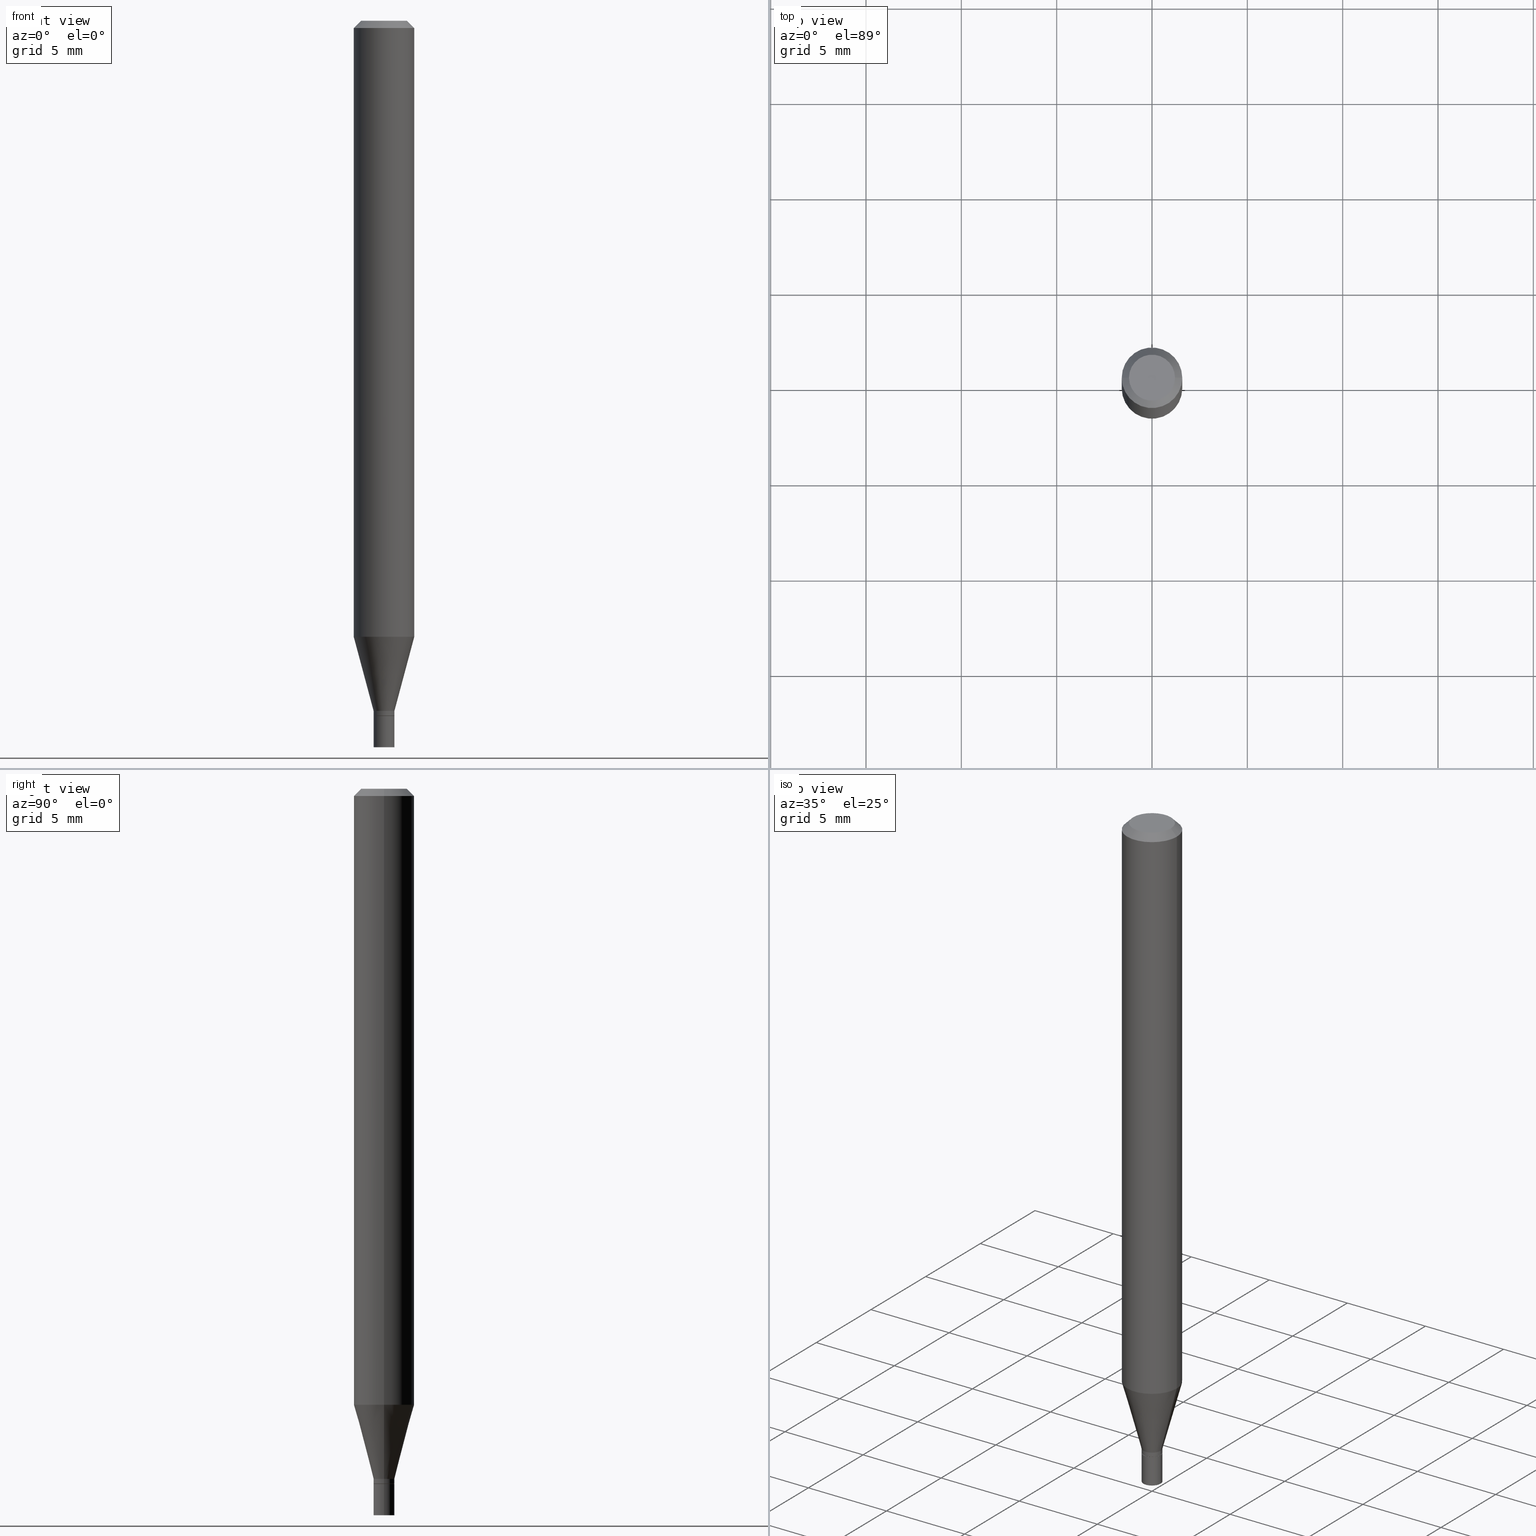
[diagram: canonical four-view strip — front | top / right | iso, engineering-drawing reading convention]
A machine part, canonical four-view strip (front | top / right | iso — engineering-drawing reading convention). The complete STEP part file that produces these views, byte-faithful:
ISO-10303-21;
HEADER;
FILE_DESCRIPTION (( 'STEP AP203' ),
    '1' );
FILE_NAME ('00410.STEP',
    '2024-03-19T21:11:53',
    ( '' ),
    ( '' ),
    'SwSTEP 2.0',
    'SolidWorks 2023',
    '' );
FILE_SCHEMA (( 'CONFIG_CONTROL_DESIGN' ));
ENDSEC;

DATA;
#1 = DIRECTION ( 'NONE',  ( -2.445468806185136597E-29, 3.491481338843145583E-15, 1.000000000000000000 ) ) ;
#2 = LOCAL_TIME ( 17, 11, 53.00000000000000000, #274 ) ;
#3 = LINE ( 'NONE', #398, #66 ) ;
#4 = ORIENTED_EDGE ( 'NONE', *, *, #43, .F. ) ;
#5 = PERSON ( 'UNSPECIFIED', 'UNSPECIFIED', 'UNSPECIFIED', ('UNSPECIFIED'), ('UNSPECIFIED'), ('UNSPECIFIED') ) ;
#6 = AXIS2_PLACEMENT_3D ( 'NONE', #340, #89, #447 ) ;
#7 = DIRECTION ( 'NONE',  ( -0.7071067811865444641, 2.468850131082224717E-15, -0.7071067811865505703 ) ) ;
#8 = ORIENTED_EDGE ( 'NONE', *, *, #37, .T. ) ;
#9 = APPROVAL ( #195, 'UNSPECIFIED' ) ;
#10 = ADVANCED_FACE ( 'NONE', ( #373 ), #221, .T. ) ;
#11 = VECTOR ( 'NONE', #7, 39.37007874015748143 ) ;
#12 = EDGE_LOOP ( 'NONE', ( #386, #50, #92, #123 ) ) ;
#13 = CARTESIAN_POINT ( 'NONE',  ( 0.02099999999999999784, -5.156917937471325857E-15, -1.435000000000000053 ) ) ;
#14 = CONICAL_SURFACE ( 'NONE', #6, 0.06250000000000000000, 0.7853981633974439491 ) ;
#15 = CARTESIAN_POINT ( 'NONE',  ( 3.509247736875671532E-29, -5.010275721239914035E-15, -1.435000000000000053 ) ) ;
#16 = EDGE_LOOP ( 'NONE', ( #435, #8 ) ) ;
#17 = FACE_OUTER_BOUND ( 'NONE', #306, .T. ) ;
#18 = CALENDAR_DATE ( 2024, 19, 3 ) ;
#19 = ORIENTED_EDGE ( 'NONE', *, *, #371, .F. ) ;
#20 = CARTESIAN_POINT ( 'NONE',  ( 3.316907271900976096E-16, 0.04749999999999999362, -9.994755555137580731E-17 ) ) ;
#21 = DIRECTION ( 'NONE',  ( -2.445468806185136597E-29, 3.491481338843145583E-15, 1.000000000000000000 ) ) ;
#22 = PERSON_AND_ORGANIZATION_ROLE ( 'creator' ) ;
#23 = FACE_OUTER_BOUND ( 'NONE', #75, .T. ) ;
#24 = ORIENTED_EDGE ( 'NONE', *, *, #47, .T. ) ;
#25 = VERTEX_POINT ( 'NONE', #409 ) ;
#26 = ADVANCED_FACE ( 'NONE', ( #91 ), #201, .F. ) ;
#27 = CARTESIAN_POINT ( 'NONE',  ( 3.509247736875671532E-29, -5.010275721239914035E-15, -1.435000000000000053 ) ) ;
#28 = CARTESIAN_POINT ( 'NONE',  ( 0.02149999999999991848, -1.501336975702541880E-16, 1.048378006796122174E-30 ) ) ;
#29 = FACE_OUTER_BOUND ( 'NONE', #54, .T. ) ;
#30 = LENGTH_MEASURE_WITH_UNIT ( LENGTH_MEASURE( 0.02539999999999999897 ), #245 );
#31 = DIRECTION ( 'NONE',  ( -2.445468806185136597E-29, 3.491481338843145583E-15, 1.000000000000000000 ) ) ;
#32 = CC_DESIGN_PERSON_AND_ORGANIZATION_ASSIGNMENT ( #441, #114, ( #429 ) ) ;
#33 = AXIS2_PLACEMENT_3D ( 'NONE', #188, #94, #235 ) ;
#34 = DIRECTION ( 'NONE',  ( -2.445468806185136877E-29, 3.491481338843145188E-15, 1.000000000000000000 ) ) ;
#35 = CARTESIAN_POINT ( 'NONE',  ( 0.000000000000000000, 0.000000000000000000, 0.000000000000000000 ) ) ;
#36 = CIRCLE ( 'NONE', #330, 0.02150000000000000175 ) ;
#37 = EDGE_CURVE ( 'NONE', #86, #25, #36, .T. ) ;
#38 = CARTESIAN_POINT ( 'NONE',  ( -0.06250000000000000000, 4.440892098500626162E-16, -3.074334431409316114E-30 ) ) ;
#39 = EDGE_CURVE ( 'NONE', #146, #285, #392, .T. ) ;
#40 = CIRCLE ( 'NONE', #33, 0.06250000000000000000 ) ;
#41 = ORIENTED_EDGE ( 'NONE', *, *, #284, .F. ) ;
#42 = AXIS2_PLACEMENT_3D ( 'NONE', #294, #196, #372 ) ;
#43 = EDGE_CURVE ( 'NONE', #198, #332, #411, .T. ) ;
#44 = DIRECTION ( 'NONE',  ( 1.000000000000000000, -6.982962677686287221E-15, 0.000000000000000000 ) ) ;
#45 = CONICAL_SURFACE ( 'NONE', #391, 0.02099999999999999784, 0.7853981633974739252 ) ;
#46 = DIRECTION ( 'NONE',  ( 1.000000000000000000, -6.982962677686266711E-15, 0.000000000000000000 ) ) ;
#47 = EDGE_CURVE ( 'NONE', #332, #198, #351, .T. ) ;
#48 = EDGE_CURVE ( 'NONE', #100, #113, #140, .T. ) ;
#49 = VERTEX_POINT ( 'NONE', #288 ) ;
#50 = ORIENTED_EDGE ( 'NONE', *, *, #48, .T. ) ;
#51 = AXIS2_PLACEMENT_3D ( 'NONE', #305, #85, #229 ) ;
#52 = LINE ( 'NONE', #13, #77 ) ;
#53 = CARTESIAN_POINT ( 'NONE',  ( 3.576687321579069994E-29, -5.368277968210015545E-15, -1.500000000000000222 ) ) ;
#54 = EDGE_LOOP ( 'NONE', ( #148, #393, #341, #151 ) ) ;
#55 = DIRECTION ( 'NONE',  ( 1.000000000000000000, -6.982962677686266711E-15, 4.876176775795935793E-29 ) ) ;
#56 = CLOSED_SHELL ( 'NONE', ( #111, #339, #197, #26 ) ) ;
#57 = ORIENTED_EDGE ( 'NONE', *, *, #350, .F. ) ;
#58 = PERSON_AND_ORGANIZATION ( #5, #186 ) ;
#59 = DIRECTION ( 'NONE',  ( -2.445468806185136597E-29, 3.491481338843145583E-15, 1.000000000000000000 ) ) ;
#60 = CARTESIAN_POINT ( 'NONE',  ( 3.668203209277704895E-29, -5.237222008264718177E-15, -1.500000000000000222 ) ) ;
#61 = ORIENTED_EDGE ( 'NONE', *, *, #399, .T. ) ;
#62 = CARTESIAN_POINT ( 'NONE',  ( 3.484793048813820547E-29, -4.975360907851483175E-15, -1.425000000000000266 ) ) ;
#63 = AXIS2_PLACEMENT_3D ( 'NONE', #20, #315, #172 ) ;
#64 = LINE ( 'NONE', #137, #143 ) ;
#65 = LINE ( 'NONE', #28, #434 ) ;
#66 = VECTOR ( 'NONE', #442, 39.37007874015748143 ) ;
#67 = APPROVAL_DATE_TIME ( #343, #259 ) ;
#68 = DIRECTION ( 'NONE',  ( 1.000000000000000000, -6.982962677686287221E-15, 0.000000000000000000 ) ) ;
#69 = EDGE_CURVE ( 'NONE', #251, #324, #3, .T. ) ;
#70 = DIRECTION ( 'NONE',  ( -2.445468806185136877E-29, 3.491481338843145188E-15, 1.000000000000000000 ) ) ;
#71 = ORIENTED_EDGE ( 'NONE', *, *, #329, .F. ) ;
#72 = EDGE_CURVE ( 'NONE', #25, #86, #287, .T. ) ;
#73 = AXIS2_PLACEMENT_3D ( 'NONE', #27, #458, #242 ) ;
#74 = ORIENTED_EDGE ( 'NONE', *, *, #174, .F. ) ;
#75 = EDGE_LOOP ( 'NONE', ( #389, #431, #432, #254 ) ) ;
#76 = CC_DESIGN_PERSON_AND_ORGANIZATION_ASSIGNMENT ( #166, #377, ( #252 ) ) ;
#77 = VECTOR ( 'NONE', #155, 39.37007874015748143 ) ;
#78 = ORIENTED_EDGE ( 'NONE', *, *, #210, .T. ) ;
#79 =( GEOMETRIC_REPRESENTATION_CONTEXT ( 3 ) GLOBAL_UNCERTAINTY_ASSIGNED_CONTEXT ( ( #440 ) ) GLOBAL_UNIT_ASSIGNED_CONTEXT ( ( #237, #134, #421 ) ) REPRESENTATION_CONTEXT ( 'NONE', 'WORKASPACE' ) );
#80 = DIRECTION ( 'NONE',  ( 1.000000000000000000, -6.982962677686265133E-15, 0.000000000000000000 ) ) ;
#81 = PERSON_AND_ORGANIZATION ( #5, #186 ) ;
#82 = AXIS2_PLACEMENT_3D ( 'NONE', #236, #383, #311 ) ;
#83 = DIRECTION ( 'NONE',  ( 1.000000000000000000, -6.982962677686287221E-15, 0.000000000000000000 ) ) ;
#84 = EDGE_LOOP ( 'NONE', ( #74, #225, #337, #334 ) ) ;
#85 = DIRECTION ( 'NONE',  ( -2.445468806185136597E-29, 3.491481338843145583E-15, 1.000000000000000000 ) ) ;
#86 = VERTEX_POINT ( 'NONE', #224 ) ;
#87 = CARTESIAN_POINT ( 'NONE',  ( 3.668203209277705088E-31, -5.237222008264718399E-17, -0.01499999999999999944 ) ) ;
#88 = APPROVAL_ROLE ( '' ) ;
#89 = DIRECTION ( 'NONE',  ( 2.445468806185136597E-29, -3.491481338843145583E-15, -1.000000000000000000 ) ) ;
#90 = AXIS2_PLACEMENT_3D ( 'NONE', #404, #59, #120 ) ;
#91 = FACE_OUTER_BOUND ( 'NONE', #16, .T. ) ;
#92 = ORIENTED_EDGE ( 'NONE', *, *, #437, .T. ) ;
#93 = COORDINATED_UNIVERSAL_TIME_OFFSET ( 5, 0, .BEHIND. ) ;
#94 = DIRECTION ( 'NONE',  ( -2.445468806185136597E-29, 3.491481338843145583E-15, 1.000000000000000000 ) ) ;
#95 = ADVANCED_FACE ( 'NONE', ( #369 ), #14, .T. ) ;
#96 = DIRECTION ( 'NONE',  ( 0.2588190451025213501, 1.565188264969621968E-15, 0.9659258262890682012 ) ) ;
#97 = VECTOR ( 'NONE', #291, 39.37007874015747433 ) ;
#98 = CC_DESIGN_DATE_AND_TIME_ASSIGNMENT ( #455, #157, ( #252 ) ) ;
#99 = CARTESIAN_POINT ( 'NONE',  ( -0.02149999999999992195, -4.855763292382072039E-15, -1.434500000000000330 ) ) ;
#100 = VERTEX_POINT ( 'NONE', #187 ) ;
#101 = ORIENTED_EDGE ( 'NONE', *, *, #329, .T. ) ;
#102 = AXIS2_PLACEMENT_3D ( 'NONE', #336, #309, #412 ) ;
#103 = LINE ( 'NONE', #426, #395 ) ;
#104 = ORIENTED_EDGE ( 'NONE', *, *, #72, .F. ) ;
#105 = CLOSED_SHELL ( 'NONE', ( #299, #410, #10, #363, #179, #194, #390, #95, #265, #425, #106, #322 ) ) ;
#106 = ADVANCED_FACE ( 'NONE', ( #116 ), #183, .T. ) ;
#107 = ORIENTED_EDGE ( 'NONE', *, *, #138, .T. ) ;
#108 = MANIFOLD_SOLID_BREP ( 'Body-Move/Copy2[1]', #56 ) ;
#109 = AXIS2_PLACEMENT_3D ( 'NONE', #35, #318, #264 ) ;
#110 = AXIS2_PLACEMENT_3D ( 'NONE', #344, #335, #83 ) ;
#111 = ADVANCED_FACE ( 'NONE', ( #228 ), #159, .T. ) ;
#112 = PLANE ( 'NONE',  #316 ) ;
#113 = VERTEX_POINT ( 'NONE', #268 ) ;
#114 = PERSON_AND_ORGANIZATION_ROLE ( 'design_supplier' ) ;
#115 = DIRECTION ( 'NONE',  ( 1.000000000000000000, 0.000000000000000000, 0.000000000000000000 ) ) ;
#116 = FACE_OUTER_BOUND ( 'NONE', #300, .T. ) ;
#117 = EDGE_CURVE ( 'NONE', #285, #146, #176, .T. ) ;
#118 = APPROVAL_DATE_TIME ( #125, #9 ) ;
#119 = CIRCLE ( 'NONE', #238, 0.06250000000000000000 ) ;
#120 = DIRECTION ( 'NONE',  ( 1.000000000000000000, -6.982962677686265133E-15, 0.000000000000000000 ) ) ;
#121 = DIRECTION ( 'NONE',  ( -1.000000000000000000, 6.982962677686266711E-15, 0.000000000000000000 ) ) ;
#122 = FACE_OUTER_BOUND ( 'NONE', #84, .T. ) ;
#123 = ORIENTED_EDGE ( 'NONE', *, *, #211, .F. ) ;
#124 = APPLICATION_CONTEXT ( 'configuration controlled 3d designs of mechanical parts and assemblies' ) ;
#125 = DATE_AND_TIME ( #453, #247 ) ;
#126 = EDGE_LOOP ( 'NONE', ( #272, #101, #459, #367 ) ) ;
#127 = PERSON_AND_ORGANIZATION ( #5, #186 ) ;
#128 = EDGE_CURVE ( 'NONE', #198, #375, #52, .T. ) ;
#129 = DIRECTION ( 'NONE',  ( 2.445468806185136597E-29, -3.491481338843145583E-15, -1.000000000000000000 ) ) ;
#130 = DIRECTION ( 'NONE',  ( -2.445468806185136877E-29, 3.491481338843145188E-15, 1.000000000000000000 ) ) ;
#131 = DIRECTION ( 'NONE',  ( 1.000000000000000000, -6.982962677686246989E-15, 0.000000000000000000 ) ) ;
#132 = AXIS2_PLACEMENT_3D ( 'NONE', #354, #31, #170 ) ;
#133 = APPLICATION_CONTEXT ( 'configuration controlled 3d designs of mechanical parts and assemblies' ) ;
#134 =( NAMED_UNIT ( * ) PLANE_ANGLE_UNIT ( ) SI_UNIT ( $, .RADIAN. ) );
#135 = LINE ( 'NONE', #38, #226 ) ;
#136 = AXIS2_PLACEMENT_3D ( 'NONE', #280, #213, #141 ) ;
#137 = CARTESIAN_POINT ( 'NONE',  ( 0.06250000000000000000, -4.364351673553916694E-16, 3.047610484872459871E-30 ) ) ;
#138 = EDGE_CURVE ( 'NONE', #113, #100, #173, .T. ) ;
#139 = AXIS2_PLACEMENT_3D ( 'NONE', #62, #165, #131 ) ;
#140 = CIRCLE ( 'NONE', #422, 0.02149999999999991501 ) ;
#141 = DIRECTION ( 'NONE',  ( 1.000000000000000000, -6.982962677686246989E-15, 0.000000000000000000 ) ) ;
#142 = CARTESIAN_POINT ( 'NONE',  ( 3.509247736875671532E-29, -5.010275721239914035E-15, -1.435000000000000053 ) ) ;
#143 = VECTOR ( 'NONE', #457, 39.37007874015748143 ) ;
#144 = EDGE_LOOP ( 'NONE', ( #107, #61, #57, #276 ) ) ;
#145 = EDGE_LOOP ( 'NONE', ( #451, #396, #346, #321 ) ) ;
#146 = VERTEX_POINT ( 'NONE', #424 ) ;
#147 = APPLICATION_PROTOCOL_DEFINITION ( 'international standard', 'config_control_design', 1994, #124 ) ;
#148 = ORIENTED_EDGE ( 'NONE', *, *, #394, .F. ) ;
#149 = AXIS2_PLACEMENT_3D ( 'NONE', #169, #461, #407 ) ;
#150 = LINE ( 'NONE', #444, #97 ) ;
#151 = ORIENTED_EDGE ( 'NONE', *, *, #37, .F. ) ;
#152 = APPROVAL_ROLE ( '' ) ;
#153 = DIRECTION ( 'NONE',  ( 0.000000000000000000, 0.000000000000000000, 1.000000000000000000 ) ) ;
#154 = CC_DESIGN_PERSON_AND_ORGANIZATION_ASSIGNMENT ( #263, #22, ( #429 ) ) ;
#155 = DIRECTION ( 'NONE',  ( 0.7071067811865656694, -2.468850131082446387E-15, 0.7071067811865294761 ) ) ;
#156 = ORIENTED_EDGE ( 'NONE', *, *, #401, .T. ) ;
#157 = DATE_TIME_ROLE ( 'creation_date' ) ;
#158 = CARTESIAN_POINT ( 'NONE',  ( 0.000000000000000000, 0.000000000000000000, 0.000000000000000000 ) ) ;
#159 = CYLINDRICAL_SURFACE ( 'NONE', #42, 0.02150000000000000175 ) ;
#160 = EDGE_LOOP ( 'NONE', ( #253, #402 ) ) ;
#161 = LINE ( 'NONE', #222, #418 ) ;
#162 = APPROVAL_STATUS ( 'not_yet_approved' ) ;
#163 = VECTOR ( 'NONE', #34, 39.37007874015748143 ) ;
#164 = DIRECTION ( 'NONE',  ( -2.445468806185136597E-29, 3.491481338843145583E-15, 1.000000000000000000 ) ) ;
#165 = DIRECTION ( 'NONE',  ( -2.445468806185136597E-29, 3.491481338843145583E-15, 1.000000000000000000 ) ) ;
#166 = PERSON_AND_ORGANIZATION ( #5, #186 ) ;
#167 = PRODUCT ( '00410', '00410', '', ( #216 ) ) ;
#168 = CARTESIAN_POINT ( 'NONE',  ( -0.02099999999999999784, -4.858412519556183240E-15, -1.435000000000000053 ) ) ;
#169 = CARTESIAN_POINT ( 'NONE',  ( 3.508025002472578731E-29, -5.008529980570492532E-15, -1.434500000000000330 ) ) ;
#170 = DIRECTION ( 'NONE',  ( 1.000000000000000000, -6.982962677686266711E-15, 0.000000000000000000 ) ) ;
#171 = CIRCLE ( 'NONE', #301, 0.04749999999999999362 ) ;
#172 = DIRECTION ( 'NONE',  ( -1.000000000000000000, 6.982962677686265922E-15, -4.876176775795935793E-29 ) ) ;
#173 = CIRCLE ( 'NONE', #136, 0.02149999999999991501 ) ;
#174 = EDGE_CURVE ( 'NONE', #250, #100, #103, .T. ) ;
#175 = EDGE_CURVE ( 'NONE', #292, #251, #190, .T. ) ;
#176 = CIRCLE ( 'NONE', #277, 0.02150000000000000175 ) ;
#177 = DIRECTION ( 'NONE',  ( 1.000000000000000000, -6.982962677686267499E-15, 4.884662768193073002E-29 ) ) ;
#178 = VERTEX_POINT ( 'NONE', #249 ) ;
#179 = ADVANCED_FACE ( 'NONE', ( #319 ), #397, .T. ) ;
#180 = CARTESIAN_POINT ( 'NONE',  ( 3.484793048813820547E-29, -4.975360907851483175E-15, -1.425000000000000266 ) ) ;
#181 = LOCAL_TIME ( 17, 11, 53.00000000000000000, #298 ) ;
#182 = ORIENTED_EDGE ( 'NONE', *, *, #69, .T. ) ;
#183 = CONICAL_SURFACE ( 'NONE', #110, 0.02099999999999999784, 0.7853981633974739252 ) ;
#184 = DIRECTION ( 'NONE',  ( -2.445468806185136877E-29, 3.491481338843145188E-15, 1.000000000000000000 ) ) ;
#185 = ORIENTED_EDGE ( 'NONE', *, *, #175, .F. ) ;
#186 = ORGANIZATION ( 'UNSPECIFIED', 'UNSPECIFIED', '' ) ;
#187 = CARTESIAN_POINT ( 'NONE',  ( -0.02149999999999991501, -4.409810050952296864E-15, -1.425000000000000266 ) ) ;
#188 = CARTESIAN_POINT ( 'NONE',  ( 3.110601881660502602E-29, -4.441115092091593662E-15, -1.271985916889676327 ) ) ;
#189 = CARTESIAN_POINT ( 'NONE',  ( -0.06250000000000000000, 3.840629472727444916E-16, -0.01499999999999999944 ) ) ;
#190 = CIRCLE ( 'NONE', #463, 0.04749999999999999362 ) ;
#191 = DIRECTION ( 'NONE',  ( -2.445468806185136597E-29, 3.491481338843145583E-15, 1.000000000000000000 ) ) ;
#192 = CARTESIAN_POINT ( 'NONE',  ( 3.668203209277705088E-31, -5.237222008264718399E-17, -0.01499999999999999944 ) ) ;
#193 = ORIENTED_EDGE ( 'NONE', *, *, #227, .F. ) ;
#194 = ADVANCED_FACE ( 'NONE', ( #233 ), #257, .T. ) ;
#195 = APPROVAL_STATUS ( 'not_yet_approved' ) ;
#196 = DIRECTION ( 'NONE',  ( -2.445468806185136597E-29, 3.491481338843145583E-15, 1.000000000000000000 ) ) ;
#197 = ADVANCED_FACE ( 'NONE', ( #29 ), #273, .T. ) ;
#198 = VERTEX_POINT ( 'NONE', #206 ) ;
#199 = CARTESIAN_POINT ( 'NONE',  ( 3.484793048813820547E-29, -4.975360907851483175E-15, -1.425000000000000266 ) ) ;
#200 = CIRCLE ( 'NONE', #149, 0.02149999999999992195 ) ;
#201 = PLANE ( 'NONE',  #358 ) ;
#202 = FACE_OUTER_BOUND ( 'NONE', #427, .T. ) ;
#203 = DIRECTION ( 'NONE',  ( -2.445468806185136597E-29, 3.491481338843145583E-15, 1.000000000000000000 ) ) ;
#204 = PERSON_AND_ORGANIZATION_ROLE ( 'classification_officer' ) ;
#205 = CARTESIAN_POINT ( 'NONE',  ( 0.02149999999999991501, -5.125494605421737215E-15, -1.425000000000000266 ) ) ;
#206 = CARTESIAN_POINT ( 'NONE',  ( 0.02099999999999999784, -5.156917937471325857E-15, -1.435000000000000053 ) ) ;
#207 = PRODUCT_RELATED_PRODUCT_CATEGORY ( 'detail', '', ( #167 ) ) ;
#208 = CC_DESIGN_APPROVAL ( #313, ( #429 ) ) ;
#209 = DIRECTION ( 'NONE',  ( -2.445468806185136597E-29, 3.491481338843145583E-15, 1.000000000000000000 ) ) ;
#210 = EDGE_CURVE ( 'NONE', #49, #324, #64, .T. ) ;
#211 = EDGE_CURVE ( 'NONE', #286, #49, #119, .T. ) ;
#212 = CIRCLE ( 'NONE', #460, 0.06250000000000000000 ) ;
#213 = DIRECTION ( 'NONE',  ( -2.445468806185136597E-29, 3.491481338843145583E-15, 1.000000000000000000 ) ) ;
#214 = AXIS2_PLACEMENT_3D ( 'NONE', #416, #1, #44 ) ;
#215 = EDGE_LOOP ( 'NONE', ( #41, #182, #156, #19 ) ) ;
#216 = MECHANICAL_CONTEXT ( 'NONE', #124, 'mechanical' ) ;
#217 = CC_DESIGN_PERSON_AND_ORGANIZATION_ASSIGNMENT ( #127, #204, ( #448 ) ) ;
#218 = APPROVAL_PERSON_ORGANIZATION ( #81, #9, #88 ) ;
#219 = EDGE_LOOP ( 'NONE', ( #443, #185, #449, #428 ) ) ;
#220 = AXIS2_PLACEMENT_3D ( 'NONE', #438, #366, #55 ) ;
#221 = CONICAL_SURFACE ( 'NONE', #466, 0.06250000000000000000, 0.7853981633974439491 ) ;
#222 = CARTESIAN_POINT ( 'NONE',  ( -0.02150000000000000175, 1.527666881884215524E-16, -1.057571044404804700E-30 ) ) ;
#223 = DESIGN_CONTEXT ( 'detailed design', #133, 'design' ) ;
#224 = CARTESIAN_POINT ( 'NONE',  ( -0.02150000000000000175, -4.970982176563895219E-15, -1.435000000000000053 ) ) ;
#225 = ORIENTED_EDGE ( 'NONE', *, *, #227, .T. ) ;
#226 = VECTOR ( 'NONE', #278, 39.37007874015748143 ) ;
#227 = EDGE_CURVE ( 'NONE', #250, #375, #200, .T. ) ;
#228 = FACE_OUTER_BOUND ( 'NONE', #310, .T. ) ;
#229 = DIRECTION ( 'NONE',  ( 1.000000000000000000, -6.982962677686267499E-15, 4.876176775795935793E-29 ) ) ;
#230 = PERSON_AND_ORGANIZATION ( #5, #186 ) ;
#231 = CC_DESIGN_PERSON_AND_ORGANIZATION_ASSIGNMENT ( #58, #408, ( #167 ) ) ;
#232 = DIRECTION ( 'NONE',  ( 2.438088387897960049E-29, -3.491481338843145188E-15, -1.000000000000000000 ) ) ;
#233 = FACE_OUTER_BOUND ( 'NONE', #12, .T. ) ;
#234 = SECURITY_CLASSIFICATION_LEVEL ( 'unclassified' ) ;
#235 = DIRECTION ( 'NONE',  ( 1.000000000000000000, -6.982962677686262766E-15, 0.000000000000000000 ) ) ;
#236 = CARTESIAN_POINT ( 'NONE',  ( 0.000000000000000000, 0.000000000000000000, 0.000000000000000000 ) ) ;
#237 =( CONVERSION_BASED_UNIT ( 'INCH', #30 ) LENGTH_UNIT ( ) NAMED_UNIT ( #446 ) );
#238 = AXIS2_PLACEMENT_3D ( 'NONE', #275, #203, #452 ) ;
#239 = DIRECTION ( 'NONE',  ( -0.7071067811865656694, 7.493145998870420424E-15, 0.7071067811865294761 ) ) ;
#240 = CARTESIAN_POINT ( 'NONE',  ( 0.04749999999999999362, -4.035134999187576158E-16, 1.317956160873497667E-16 ) ) ;
#241 = SHAPE_DEFINITION_REPRESENTATION ( #279, #360 ) ;
#242 = DIRECTION ( 'NONE',  ( 1.000000000000000000, -6.982962677686265922E-15, 4.876176775795935793E-29 ) ) ;
#243 = CARTESIAN_POINT ( 'NONE',  ( -0.04749999999999999362, 3.578768372314212971E-16, 1.317956160873447624E-16 ) ) ;
#244 = EDGE_CURVE ( 'NONE', #285, #25, #419, .T. ) ;
#245 =( LENGTH_UNIT ( ) NAMED_UNIT ( * ) SI_UNIT ( $, .METRE. ) );
#246 = CYLINDRICAL_SURFACE ( 'NONE', #109, 0.02149999999999991848 ) ;
#247 = LOCAL_TIME ( 17, 11, 53.00000000000000000, #312 ) ;
#248 = DIRECTION ( 'NONE',  ( -2.445468806185136597E-29, 3.491481338843145583E-15, 1.000000000000000000 ) ) ;
#249 = CARTESIAN_POINT ( 'NONE',  ( -0.06250000000000000000, -1.802654446237057557E-15, -0.01499999999999999944 ) ) ;
#250 = VERTEX_POINT ( 'NONE', #99 ) ;
#251 = VERTEX_POINT ( 'NONE', #240 ) ;
#252 = PRODUCT_DEFINITION ( 'UNKNOWN', '', #429, #223 ) ;
#253 = ORIENTED_EDGE ( 'NONE', *, *, #175, .T. ) ;
#254 = ORIENTED_EDGE ( 'NONE', *, *, #210, .F. ) ;
#255 = CARTESIAN_POINT ( 'NONE',  ( 0.02149999999999992195, -5.158663678140747361E-15, -1.434500000000000330 ) ) ;
#256 = MANIFOLD_SOLID_BREP ( 'Body-Move/Copy2[2]', #105 ) ;
#257 = CONICAL_SURFACE ( 'NONE', #290, 0.02149999999999991501, 0.2617993877991500740 ) ;
#258 = EDGE_LOOP ( 'NONE', ( #454, #262 ) ) ;
#259 = APPROVAL ( #162, 'UNSPECIFIED' ) ;
#260 = AXIS2_PLACEMENT_3D ( 'NONE', #60, #164, #304 ) ;
#261 = DIRECTION ( 'NONE',  ( -2.438088387897960049E-29, 3.491481338843145188E-15, 1.000000000000000000 ) ) ;
#262 = ORIENTED_EDGE ( 'NONE', *, *, #39, .F. ) ;
#263 = PERSON_AND_ORGANIZATION ( #5, #186 ) ;
#264 = DIRECTION ( 'NONE',  ( 1.000000000000000000, -6.982962677686267499E-15, 4.876176775795935793E-29 ) ) ;
#265 = ADVANCED_FACE ( 'NONE', ( #342 ), #387, .F. ) ;
#266 = ORIENTED_EDGE ( 'NONE', *, *, #295, .F. ) ;
#267 = APPLICATION_PROTOCOL_DEFINITION ( 'international standard', 'config_control_design', 1994, #133 ) ;
#268 = CARTESIAN_POINT ( 'NONE',  ( 0.02149999999999991501, -5.125494605421737215E-15, -1.425000000000000266 ) ) ;
#269 = CARTESIAN_POINT ( 'NONE',  ( 0.06250000000000000000, -4.888073874380388472E-16, -0.01499999999999999944 ) ) ;
#270 = ORIENTED_EDGE ( 'NONE', *, *, #117, .T. ) ;
#271 = FACE_OUTER_BOUND ( 'NONE', #258, .T. ) ;
#272 = ORIENTED_EDGE ( 'NONE', *, *, #43, .T. ) ;
#273 = CYLINDRICAL_SURFACE ( 'NONE', #82, 0.02150000000000000175 ) ;
#274 = COORDINATED_UNIVERSAL_TIME_OFFSET ( 5, 0, .BEHIND. ) ;
#275 = CARTESIAN_POINT ( 'NONE',  ( 3.110601881660502602E-29, -4.441115092091593662E-15, -1.271985916889676327 ) ) ;
#276 = ORIENTED_EDGE ( 'NONE', *, *, #437, .F. ) ;
#277 = AXIS2_PLACEMENT_3D ( 'NONE', #400, #191, #80 ) ;
#278 = DIRECTION ( 'NONE',  ( -2.445468806185136877E-29, 3.491481338843145188E-15, 1.000000000000000000 ) ) ;
#279 = PRODUCT_DEFINITION_SHAPE ( 'NONE', 'NONE',  #252 ) ;
#280 = CARTESIAN_POINT ( 'NONE',  ( 3.484793048813820547E-29, -4.975360907851483175E-15, -1.425000000000000266 ) ) ;
#281 = LOCAL_TIME ( 17, 11, 53.00000000000000000, #348 ) ;
#282 = DIRECTION ( 'NONE',  ( -2.445468806185136597E-29, 3.491481338843145583E-15, 1.000000000000000000 ) ) ;
#283 = AXIS2_PLACEMENT_3D ( 'NONE', #158, #153, #115 ) ;
#284 = EDGE_CURVE ( 'NONE', #251, #292, #171, .T. ) ;
#285 = VERTEX_POINT ( 'NONE', #462 ) ;
#286 = VERTEX_POINT ( 'NONE', #357 ) ;
#287 = CIRCLE ( 'NONE', #90, 0.02150000000000000175 ) ;
#288 = CARTESIAN_POINT ( 'NONE',  ( 0.06250000000000001388, -4.877550259446984543E-15, -1.271985916889676327 ) ) ;
#289 = CYLINDRICAL_SURFACE ( 'NONE', #220, 0.06250000000000000000 ) ;
#290 = AXIS2_PLACEMENT_3D ( 'NONE', #199, #347, #413 ) ;
#291 = DIRECTION ( 'NONE',  ( -0.2588190451025213501, 5.211531920934551042E-15, 0.9659258262890682012 ) ) ;
#292 = VERTEX_POINT ( 'NONE', #243 ) ;
#293 = PERSON_AND_ORGANIZATION ( #5, #186 ) ;
#294 = CARTESIAN_POINT ( 'NONE',  ( 0.000000000000000000, 0.000000000000000000, 0.000000000000000000 ) ) ;
#295 = EDGE_CURVE ( 'NONE', #286, #178, #135, .T. ) ;
#296 = ORIENTED_EDGE ( 'NONE', *, *, #244, .F. ) ;
#297 = DIRECTION ( 'NONE',  ( 1.000000000000000000, -6.982962677686266711E-15, 4.876176775795935793E-29 ) ) ;
#298 = COORDINATED_UNIVERSAL_TIME_OFFSET ( 5, 0, .BEHIND. ) ;
#299 = ADVANCED_FACE ( 'NONE', ( #423 ), #246, .T. ) ;
#300 = EDGE_LOOP ( 'NONE', ( #71, #24, #331, #193 ) ) ;
#301 = AXIS2_PLACEMENT_3D ( 'NONE', #317, #248, #359 ) ;
#302 = CC_DESIGN_SECURITY_CLASSIFICATION ( #448, ( #429 ) ) ;
#303 = APPROVAL_ROLE ( '' ) ;
#304 = DIRECTION ( 'NONE',  ( 1.000000000000000000, -6.982962677686265133E-15, 0.000000000000000000 ) ) ;
#305 = CARTESIAN_POINT ( 'NONE',  ( 0.000000000000000000, 0.000000000000000000, 0.000000000000000000 ) ) ;
#306 = EDGE_LOOP ( 'NONE', ( #266, #381, #78, #314 ) ) ;
#307 = APPROVAL_STATUS ( 'not_yet_approved' ) ;
#308 = DIRECTION ( 'NONE',  ( -1.000000000000000000, 6.982962677686265922E-15, -4.876176775795935793E-29 ) ) ;
#309 = DIRECTION ( 'NONE',  ( -2.445468806185136597E-29, 3.491481338843145583E-15, 1.000000000000000000 ) ) ;
#310 = EDGE_LOOP ( 'NONE', ( #270, #379, #104, #296 ) ) ;
#311 = DIRECTION ( 'NONE',  ( 1.000000000000000000, -6.982962677686265922E-15, 4.876176775795935232E-29 ) ) ;
#312 = COORDINATED_UNIVERSAL_TIME_OFFSET ( 5, 0, .BEHIND. ) ;
#313 = APPROVAL ( #307, 'UNSPECIFIED' ) ;
#314 = ORIENTED_EDGE ( 'NONE', *, *, #465, .F. ) ;
#315 = DIRECTION ( 'NONE',  ( 2.438088387897960049E-29, -3.491481338843145188E-15, -1.000000000000000000 ) ) ;
#316 = AXIS2_PLACEMENT_3D ( 'NONE', #53, #261, #374 ) ;
#317 = CARTESIAN_POINT ( 'NONE',  ( -3.223020679335594837E-45, 4.601619341103081537E-31, 1.317956160873471783E-16 ) ) ;
#318 = DIRECTION ( 'NONE',  ( -2.445468806185136597E-29, 3.491481338843145583E-15, 1.000000000000000000 ) ) ;
#319 = FACE_OUTER_BOUND ( 'NONE', #144, .T. ) ;
#320 = CIRCLE ( 'NONE', #102, 0.02149999999999992195 ) ;
#321 = ORIENTED_EDGE ( 'NONE', *, *, #327, .F. ) ;
#322 = ADVANCED_FACE ( 'NONE', ( #122 ), #345, .T. ) ;
#323 = EDGE_CURVE ( 'NONE', #375, #250, #320, .T. ) ;
#324 = VERTEX_POINT ( 'NONE', #269 ) ;
#325 = DIRECTION ( 'NONE',  ( -2.445468806185136597E-29, 3.491481338843145583E-15, 1.000000000000000000 ) ) ;
#326 = CC_DESIGN_APPROVAL ( #259, ( #252 ) ) ;
#327 = EDGE_CURVE ( 'NONE', #375, #113, #65, .T. ) ;
#328 = DIRECTION ( 'NONE',  ( 1.000000000000000000, -6.982962677686246989E-15, 0.000000000000000000 ) ) ;
#329 = EDGE_CURVE ( 'NONE', #332, #250, #417, .T. ) ;
#330 = AXIS2_PLACEMENT_3D ( 'NONE', #15, #378, #456 ) ;
#331 = ORIENTED_EDGE ( 'NONE', *, *, #128, .T. ) ;
#332 = VERTEX_POINT ( 'NONE', #168 ) ;
#333 = VECTOR ( 'NONE', #96, 39.37007874015747433 ) ;
#334 = ORIENTED_EDGE ( 'NONE', *, *, #48, .F. ) ;
#335 = DIRECTION ( 'NONE',  ( -2.445468806185136597E-29, 3.491481338843145583E-15, 1.000000000000000000 ) ) ;
#336 = CARTESIAN_POINT ( 'NONE',  ( 3.508025002472578731E-29, -5.008529980570492532E-15, -1.434500000000000330 ) ) ;
#337 = ORIENTED_EDGE ( 'NONE', *, *, #327, .T. ) ;
#338 = APPROVAL_DATE_TIME ( #445, #313 ) ;
#339 = ADVANCED_FACE ( 'NONE', ( #271 ), #112, .F. ) ;
#340 = CARTESIAN_POINT ( 'NONE',  ( 3.668203209277705088E-31, -5.237222008264718399E-17, -0.01499999999999999944 ) ) ;
#341 = ORIENTED_EDGE ( 'NONE', *, *, #244, .T. ) ;
#342 = FACE_OUTER_BOUND ( 'NONE', #160, .T. ) ;
#343 = DATE_AND_TIME ( #353, #281 ) ;
#344 = CARTESIAN_POINT ( 'NONE',  ( 3.509247736875671532E-29, -5.010275721239914035E-15, -1.435000000000000053 ) ) ;
#345 = CYLINDRICAL_SURFACE ( 'NONE', #51, 0.02149999999999991848 ) ;
#346 = ORIENTED_EDGE ( 'NONE', *, *, #138, .F. ) ;
#347 = DIRECTION ( 'NONE',  ( -2.445468806185136597E-29, 3.491481338843145583E-15, 1.000000000000000000 ) ) ;
#348 = COORDINATED_UNIVERSAL_TIME_OFFSET ( 5, 0, .BEHIND. ) ;
#349 = CARTESIAN_POINT ( 'NONE',  ( 1.501336975702898100E-16, 0.02149999999999498840, -1.435000000000000053 ) ) ;
#350 = EDGE_CURVE ( 'NONE', #49, #286, #40, .T. ) ;
#351 = CIRCLE ( 'NONE', #439, 0.02099999999999999784 ) ;
#352 = FACE_OUTER_BOUND ( 'NONE', #126, .T. ) ;
#353 = CALENDAR_DATE ( 2024, 19, 3 ) ;
#354 = CARTESIAN_POINT ( 'NONE',  ( 3.668203209277705088E-31, -5.237222008264718399E-17, -0.01499999999999999944 ) ) ;
#355 = CARTESIAN_POINT ( 'NONE',  ( 0.02150000000000000175, -1.501336975702547303E-16, 1.048378006796126202E-30 ) ) ;
#356 = APPROVAL_PERSON_ORGANIZATION ( #293, #313, #152 ) ;
#357 = CARTESIAN_POINT ( 'NONE',  ( -0.06250000000000001388, -3.997025882241531046E-15, -1.271985916889676327 ) ) ;
#358 = AXIS2_PLACEMENT_3D ( 'NONE', #349, #232, #308 ) ;
#359 = DIRECTION ( 'NONE',  ( 1.000000000000000000, -6.982962677686267499E-15, 4.884662768193073002E-29 ) ) ;
#360 = ADVANCED_BREP_SHAPE_REPRESENTATION ( '00410', ( #108, #256, #283 ), #79 ) ;
#361 = AXIS2_PLACEMENT_3D ( 'NONE', #436, #21, #297 ) ;
#362 = CARTESIAN_POINT ( 'NONE',  ( -3.223020679335594837E-45, 4.601619341103081537E-31, 1.317956160873471783E-16 ) ) ;
#363 = ADVANCED_FACE ( 'NONE', ( #23 ), #289, .T. ) ;
#364 = CC_DESIGN_DATE_AND_TIME_ASSIGNMENT ( #403, #414, ( #448 ) ) ;
#365 = CIRCLE ( 'NONE', #132, 0.06250000000000000000 ) ;
#366 = DIRECTION ( 'NONE',  ( -2.445468806185136597E-29, 3.491481338843145583E-15, 1.000000000000000000 ) ) ;
#367 = ORIENTED_EDGE ( 'NONE', *, *, #128, .F. ) ;
#368 = LINE ( 'NONE', #189, #11 ) ;
#369 = FACE_OUTER_BOUND ( 'NONE', #219, .T. ) ;
#370 = APPROVAL_PERSON_ORGANIZATION ( #230, #259, #303 ) ;
#371 = EDGE_CURVE ( 'NONE', #292, #178, #368, .T. ) ;
#372 = DIRECTION ( 'NONE',  ( 1.000000000000000000, -6.982962677686265922E-15, 4.876176775795935232E-29 ) ) ;
#373 = FACE_OUTER_BOUND ( 'NONE', #215, .T. ) ;
#374 = DIRECTION ( 'NONE',  ( 1.000000000000000000, -6.982962677686265922E-15, 4.876176775795935793E-29 ) ) ;
#375 = VERTEX_POINT ( 'NONE', #255 ) ;
#376 = DIRECTION ( 'NONE',  ( -2.445468806185136597E-29, 3.491481338843145583E-15, 1.000000000000000000 ) ) ;
#377 = PERSON_AND_ORGANIZATION_ROLE ( 'creator' ) ;
#378 = DIRECTION ( 'NONE',  ( -2.445468806185136597E-29, 3.491481338843145583E-15, 1.000000000000000000 ) ) ;
#379 = ORIENTED_EDGE ( 'NONE', *, *, #394, .T. ) ;
#380 = CALENDAR_DATE ( 2024, 19, 3 ) ;
#381 = ORIENTED_EDGE ( 'NONE', *, *, #211, .T. ) ;
#382 = VECTOR ( 'NONE', #239, 39.37007874015748143 ) ;
#383 = DIRECTION ( 'NONE',  ( -2.445468806185136597E-29, 3.491481338843145583E-15, 1.000000000000000000 ) ) ;
#384 = CALENDAR_DATE ( 2024, 19, 3 ) ;
#385 = DIRECTION ( 'NONE',  ( -2.445468806185136597E-29, 3.491481338843145583E-15, 1.000000000000000000 ) ) ;
#386 = ORIENTED_EDGE ( 'NONE', *, *, #399, .F. ) ;
#387 = PLANE ( 'NONE',  #63 ) ;
#388 = CARTESIAN_POINT ( 'NONE',  ( 3.509247736875671532E-29, -5.010275721239914035E-15, -1.435000000000000053 ) ) ;
#389 = ORIENTED_EDGE ( 'NONE', *, *, #350, .T. ) ;
#390 = ADVANCED_FACE ( 'NONE', ( #17 ), #433, .T. ) ;
#391 = AXIS2_PLACEMENT_3D ( 'NONE', #388, #385, #68 ) ;
#392 = CIRCLE ( 'NONE', #260, 0.02150000000000000175 ) ;
#393 = ORIENTED_EDGE ( 'NONE', *, *, #39, .T. ) ;
#394 = EDGE_CURVE ( 'NONE', #146, #86, #161, .T. ) ;
#395 = VECTOR ( 'NONE', #70, 39.37007874015748143 ) ;
#396 = ORIENTED_EDGE ( 'NONE', *, *, #174, .T. ) ;
#397 = CONICAL_SURFACE ( 'NONE', #139, 0.02149999999999991501, 0.2617993877991500740 ) ;
#398 = CARTESIAN_POINT ( 'NONE',  ( 0.06250000000000000000, -4.811533449433679005E-16, -0.01499999999999999944 ) ) ;
#399 = EDGE_CURVE ( 'NONE', #100, #286, #150, .T. ) ;
#400 = CARTESIAN_POINT ( 'NONE',  ( 3.668203209277704895E-29, -5.237222008264718177E-15, -1.500000000000000222 ) ) ;
#401 = EDGE_CURVE ( 'NONE', #324, #178, #212, .T. ) ;
#402 = ORIENTED_EDGE ( 'NONE', *, *, #284, .T. ) ;
#403 = DATE_AND_TIME ( #18, #2 ) ;
#404 = CARTESIAN_POINT ( 'NONE',  ( 3.509247736875671532E-29, -5.010275721239914035E-15, -1.435000000000000053 ) ) ;
#405 = LOCAL_TIME ( 17, 11, 53.00000000000000000, #93 ) ;
#406 = ORIENTED_EDGE ( 'NONE', *, *, #47, .F. ) ;
#407 = DIRECTION ( 'NONE',  ( 1.000000000000000000, -6.982962677686290376E-15, 0.000000000000000000 ) ) ;
#408 = PERSON_AND_ORGANIZATION_ROLE ( 'design_owner' ) ;
#409 = CARTESIAN_POINT ( 'NONE',  ( 0.02150000000000000175, -5.160409418810168864E-15, -1.435000000000000053 ) ) ;
#410 = ADVANCED_FACE ( 'NONE', ( #352 ), #45, .T. ) ;
#411 = CIRCLE ( 'NONE', #214, 0.02099999999999999784 ) ;
#412 = DIRECTION ( 'NONE',  ( 1.000000000000000000, -6.982962677686290376E-15, 0.000000000000000000 ) ) ;
#413 = DIRECTION ( 'NONE',  ( 1.000000000000000000, -6.982962677686246989E-15, 0.000000000000000000 ) ) ;
#414 = DATE_TIME_ROLE ( 'classification_date' ) ;
#415 = LINE ( 'NONE', #205, #333 ) ;
#416 = CARTESIAN_POINT ( 'NONE',  ( 3.509247736875671532E-29, -5.010275721239914035E-15, -1.435000000000000053 ) ) ;
#417 = LINE ( 'NONE', #450, #382 ) ;
#418 = VECTOR ( 'NONE', #184, 39.37007874015748143 ) ;
#419 = LINE ( 'NONE', #355, #163 ) ;
#420 = PLANE ( 'NONE',  #73 ) ;
#421 =( NAMED_UNIT ( * ) SI_UNIT ( $, .STERADIAN. ) SOLID_ANGLE_UNIT ( ) );
#422 = AXIS2_PLACEMENT_3D ( 'NONE', #180, #325, #328 ) ;
#423 = FACE_OUTER_BOUND ( 'NONE', #145, .T. ) ;
#424 = CARTESIAN_POINT ( 'NONE',  ( -0.02150000000000000175, -4.970982176563895219E-15, -1.500000000000000222 ) ) ;
#425 = ADVANCED_FACE ( 'NONE', ( #202 ), #420, .F. ) ;
#426 = CARTESIAN_POINT ( 'NONE',  ( -0.02149999999999991848, 1.527666881884209607E-16, -1.057571044404800846E-30 ) ) ;
#427 = EDGE_LOOP ( 'NONE', ( #4, #406 ) ) ;
#428 = ORIENTED_EDGE ( 'NONE', *, *, #465, .T. ) ;
#429 = PRODUCT_DEFINITION_FORMATION_WITH_SPECIFIED_SOURCE ( 'ANY', '', #167, .NOT_KNOWN. ) ;
#430 = DIRECTION ( 'NONE',  ( 1.000000000000000000, -6.982962677686287221E-15, 0.000000000000000000 ) ) ;
#431 = ORIENTED_EDGE ( 'NONE', *, *, #295, .T. ) ;
#432 = ORIENTED_EDGE ( 'NONE', *, *, #401, .F. ) ;
#433 = CYLINDRICAL_SURFACE ( 'NONE', #361, 0.06250000000000000000 ) ;
#434 = VECTOR ( 'NONE', #130, 39.37007874015748143 ) ;
#435 = ORIENTED_EDGE ( 'NONE', *, *, #72, .T. ) ;
#436 = CARTESIAN_POINT ( 'NONE',  ( 0.000000000000000000, 0.000000000000000000, 0.000000000000000000 ) ) ;
#437 = EDGE_CURVE ( 'NONE', #113, #49, #415, .T. ) ;
#438 = CARTESIAN_POINT ( 'NONE',  ( 0.000000000000000000, 0.000000000000000000, 0.000000000000000000 ) ) ;
#439 = AXIS2_PLACEMENT_3D ( 'NONE', #142, #282, #430 ) ;
#440 = UNCERTAINTY_MEASURE_WITH_UNIT (LENGTH_MEASURE( 1.000000000000000082E-05 ), #237, 'distance_accuracy_value', 'NONE');
#441 = PERSON_AND_ORGANIZATION ( #5, #186 ) ;
#442 = DIRECTION ( 'NONE',  ( 0.7071067811865444641, -7.319954787623245001E-15, -0.7071067811865505703 ) ) ;
#443 = ORIENTED_EDGE ( 'NONE', *, *, #69, .F. ) ;
#444 = CARTESIAN_POINT ( 'NONE',  ( -0.02149999999999991501, -4.822594219663062683E-15, -1.425000000000000266 ) ) ;
#445 = DATE_AND_TIME ( #380, #405 ) ;
#446 = DIMENSIONAL_EXPONENTS ( 1.000000000000000000, 0.000000000000000000, 0.000000000000000000, 0.000000000000000000, 0.000000000000000000, 0.000000000000000000, 0.000000000000000000 ) ;
#447 = DIRECTION ( 'NONE',  ( -1.000000000000000000, 6.982962677686266711E-15, 0.000000000000000000 ) ) ;
#448 = SECURITY_CLASSIFICATION ( '', '', #234 ) ;
#449 = ORIENTED_EDGE ( 'NONE', *, *, #371, .T. ) ;
#450 = CARTESIAN_POINT ( 'NONE',  ( -0.02099999999999999784, -4.861061746730292864E-15, -1.435000000000000053 ) ) ;
#451 = ORIENTED_EDGE ( 'NONE', *, *, #323, .T. ) ;
#452 = DIRECTION ( 'NONE',  ( 1.000000000000000000, -6.982962677686262766E-15, 0.000000000000000000 ) ) ;
#453 = CALENDAR_DATE ( 2024, 19, 3 ) ;
#454 = ORIENTED_EDGE ( 'NONE', *, *, #117, .F. ) ;
#455 = DATE_AND_TIME ( #384, #181 ) ;
#456 = DIRECTION ( 'NONE',  ( 1.000000000000000000, -6.982962677686265133E-15, 0.000000000000000000 ) ) ;
#457 = DIRECTION ( 'NONE',  ( -2.445468806185136877E-29, 3.491481338843145188E-15, 1.000000000000000000 ) ) ;
#458 = DIRECTION ( 'NONE',  ( -2.438088387897960049E-29, 3.491481338843145188E-15, 1.000000000000000000 ) ) ;
#459 = ORIENTED_EDGE ( 'NONE', *, *, #323, .F. ) ;
#460 = AXIS2_PLACEMENT_3D ( 'NONE', #87, #376, #46 ) ;
#461 = DIRECTION ( 'NONE',  ( -2.445468806185136597E-29, 3.491481338843145583E-15, 1.000000000000000000 ) ) ;
#462 = CARTESIAN_POINT ( 'NONE',  ( 0.02150000000000000175, -5.387355705834973006E-15, -1.500000000000000222 ) ) ;
#463 = AXIS2_PLACEMENT_3D ( 'NONE', #362, #209, #177 ) ;
#464 = CC_DESIGN_APPROVAL ( #9, ( #448 ) ) ;
#465 = EDGE_CURVE ( 'NONE', #178, #324, #365, .T. ) ;
#466 = AXIS2_PLACEMENT_3D ( 'NONE', #192, #129, #121 ) ;
ENDSEC;
END-ISO-10303-21;
